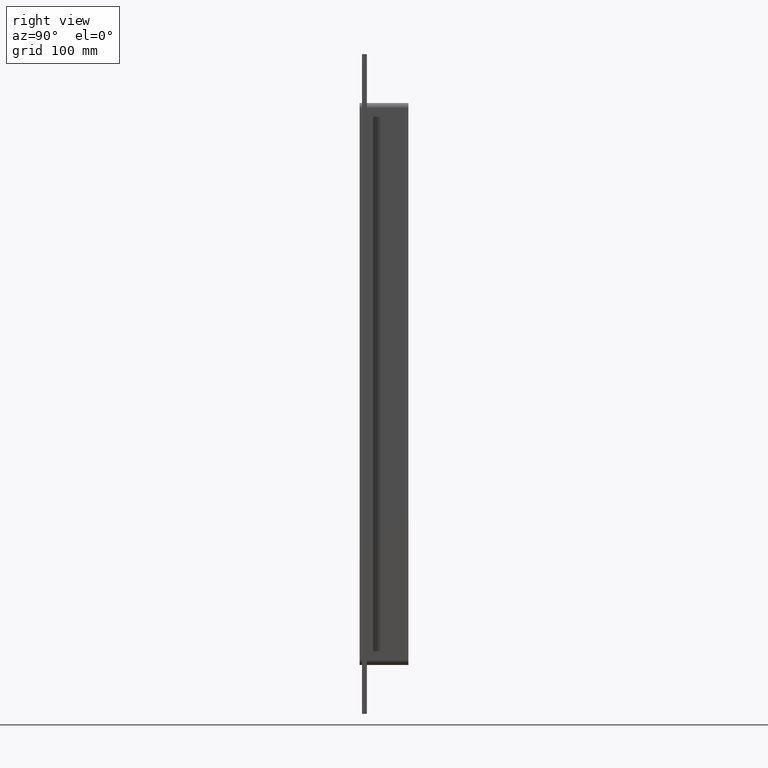
[diagram: clean part render]
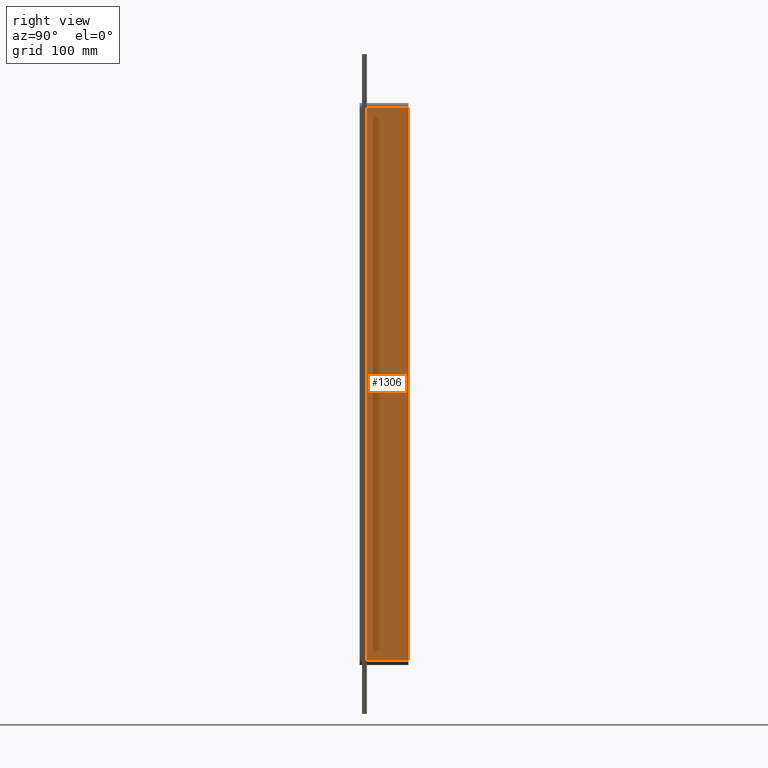
[diagram: same view with one face highlighted and labeled with its STEP entity id]
A machine part, right view. The second image highlights one B-rep face of the part: STEP entity #1306.
In plain terms, the highlighted planar face has unit normal (1, 0, 0).
Its self-contained STEP definition (entity closure, byte-faithful):
#616=CARTESIAN_POINT('',(131.50000000000003,57.0,-339.0));
#617=VERTEX_POINT('',#616);
#667=CARTESIAN_POINT('',(131.50000000000003,57.0,339.00000000000006));
#668=VERTEX_POINT('',#667);
#676=CARTESIAN_POINT('',(131.50000000000003,57.0,339.00000000000006));
#677=DIRECTION('',(0.0,0.0,-1.0));
#678=VECTOR('',#677,678.0);
#679=LINE('',#676,#678);
#680=EDGE_CURVE('',#668,#617,#679,.T.);
#965=CARTESIAN_POINT('',(131.50000000000003,6.000000000000001,-339.00000000000006));
#966=VERTEX_POINT('',#965);
#974=CARTESIAN_POINT('',(131.50000000000003,6.000000000000001,339.00000000000006));
#975=VERTEX_POINT('',#974);
#976=CARTESIAN_POINT('',(131.50000000000003,6.000000000000001,339.00000000000006));
#977=DIRECTION('',(0.0,0.0,-1.0));
#978=VECTOR('',#977,678.0);
#979=LINE('',#976,#978);
#980=EDGE_CURVE('',#975,#966,#979,.T.);
#1250=CARTESIAN_POINT('',(131.50000000000003,6.000000000000001,339.00000000000006));
#1251=DIRECTION('',(0.0,1.0,0.0));
#1252=VECTOR('',#1251,51.0);
#1253=LINE('',#1250,#1252);
#1254=EDGE_CURVE('',#975,#668,#1253,.T.);
#1290=CARTESIAN_POINT('',(131.50000000000003,0.0,345.00000000000006));
#1291=DIRECTION('',(1.0,0.0,0.0));
#1292=DIRECTION('',(0.0,0.0,-1.0));
#1293=AXIS2_PLACEMENT_3D('',#1290,#1291,#1292);
#1294=PLANE('',#1293);
#1295=ORIENTED_EDGE('',*,*,#980,.T.);
#1296=CARTESIAN_POINT('',(131.50000000000003,57.0,-339.00000000000006));
#1297=DIRECTION('',(0.0,-1.0,0.0));
#1298=VECTOR('',#1297,51.0);
#1299=LINE('',#1296,#1298);
#1300=EDGE_CURVE('',#617,#966,#1299,.T.);
#1301=ORIENTED_EDGE('',*,*,#1300,.F.);
#1302=ORIENTED_EDGE('',*,*,#680,.F.);
#1303=ORIENTED_EDGE('',*,*,#1254,.F.);
#1304=EDGE_LOOP('',(#1295,#1301,#1302,#1303));
#1305=FACE_OUTER_BOUND('',#1304,.T.);
#1306=ADVANCED_FACE('',(#1305),#1294,.T.);